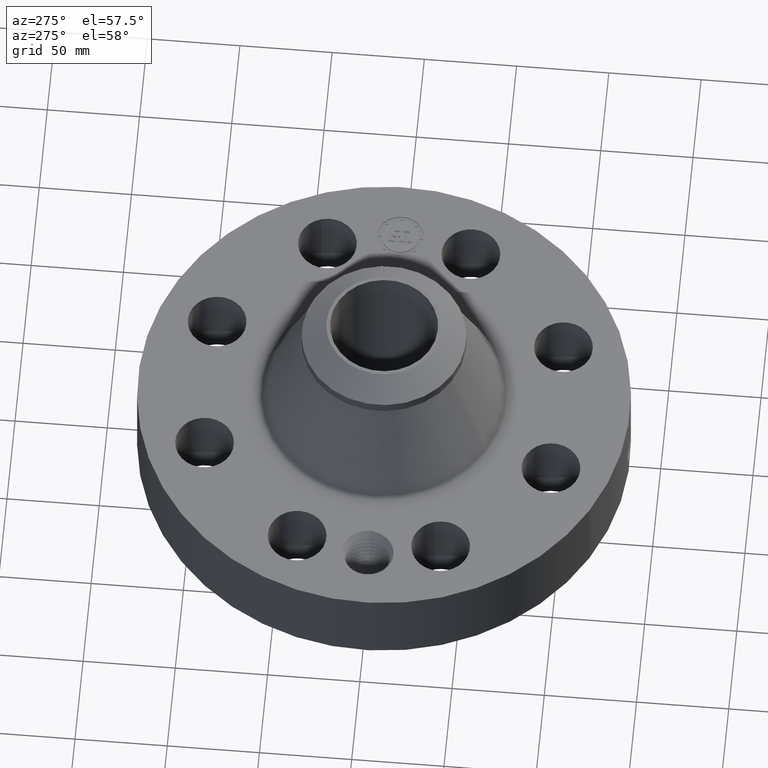
[diagram: clean part render]
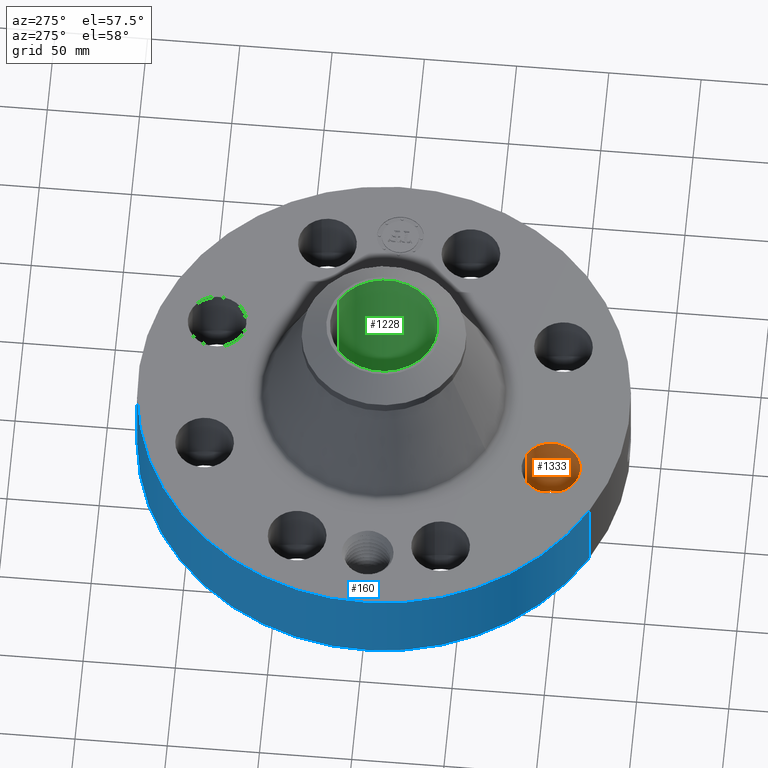
[diagram: same view with three faces highlighted in distinct colors, each labeled with its STEP entity id]
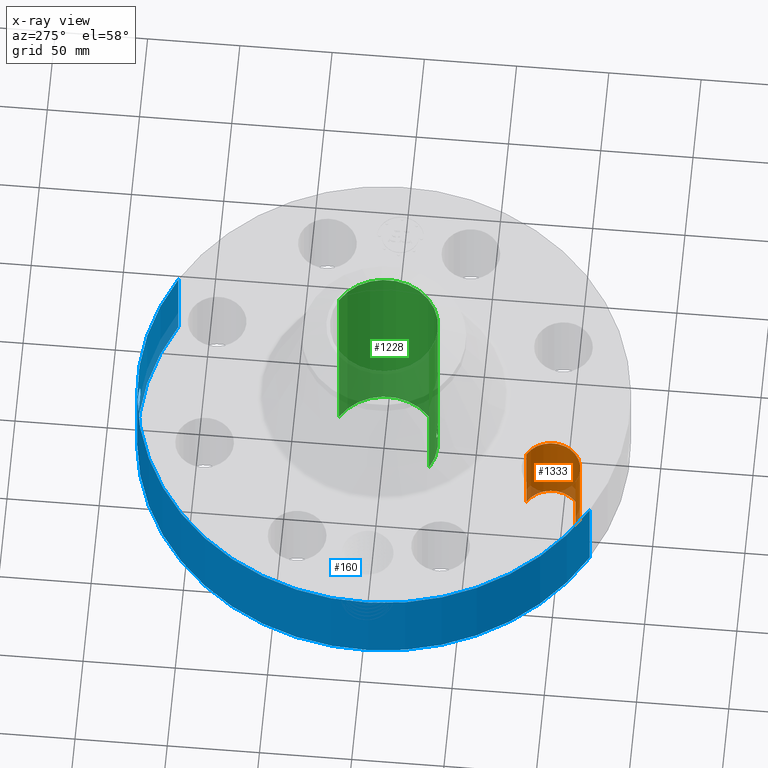
[diagram: x-ray of the same camera — body ghosted, the three highlighted faces saturated]
A machine part, auxiliary view with three faces highlighted in distinct colors.
The next image is the same camera in x-ray (body ghosted, the three faces saturated) — at least one of them is partly hidden behind the body in this view.
Their STEP definitions:

[orange] entity #1333 — the highlighted cylindrical surface (edge-blend (fillet) strip) has radius 15.875 mm, axis along (0, -0, -1).
#285=AXIS2_PLACEMENT_3D('Circle Axis2P3D',#283,#284,$) ;
#618=AXIS2_PLACEMENT_3D('Circle Axis2P3D',#616,#617,$) ;
#1315=AXIS2_PLACEMENT_3D('Cylinder Axis2P3D',#1312,#1313,#1314) ;
#283=CARTESIAN_POINT('Axis2P3D Location',(-1.53073372947,-3.69551813006,0.250000000001)) ;
#287=CARTESIAN_POINT('Vertex',(-1.23109276784,-3.14702902888,0.250000000001)) ;
#289=CARTESIAN_POINT('Vertex',(-1.8303746911,-4.24400723124,0.250000000001)) ;
#611=CARTESIAN_POINT('Vertex',(-1.8303746911,-4.24400723124,2.13000000001)) ;
#613=CARTESIAN_POINT('Vertex',(-1.23109276784,-3.14702902888,2.13000000001)) ;
#616=CARTESIAN_POINT('Axis2P3D Location',(-1.53073372947,-3.69551813006,2.13000000001)) ;
#1312=CARTESIAN_POINT('Axis2P3D Location',(-1.53073372947,-3.69551813006,2.12606299213)) ;
#1317=CARTESIAN_POINT('Line Origine',(-1.23109276784,-3.14702902888,1.19)) ;
#1322=CARTESIAN_POINT('Line Origine',(-1.8303746911,-4.24400723124,1.19)) ;
#284=DIRECTION('Axis2P3D Direction',(0.,0.,-0.0393700787402)) ;
#617=DIRECTION('Axis2P3D Direction',(0.,0.,-0.0393700787402)) ;
#1313=DIRECTION('Axis2P3D Direction',(0.,-0.,-0.0393700787402)) ;
#1314=DIRECTION('Axis2P3D XDirection',(-0.0188750212049,-0.0345504945626,0.)) ;
#1318=DIRECTION('Vector Direction',(0.,0.,-0.0393700787402)) ;
#1323=DIRECTION('Vector Direction',(0.,0.,-0.0393700787402)) ;
#1319=VECTOR('Line Direction',#1318,0.0393700787402) ;
#1324=VECTOR('Line Direction',#1323,0.0393700787402) ;
#1328=ORIENTED_EDGE('',*,*,#1321,.F.) ;
#1329=ORIENTED_EDGE('',*,*,#291,.T.) ;
#1330=ORIENTED_EDGE('',*,*,#1326,.T.) ;
#1331=ORIENTED_EDGE('',*,*,#620,.F.) ;
#1333=ADVANCED_FACE('PartBody',(#1332),#1316,.F.) ;
#286=CIRCLE('generated circle',#285,0.625000000002) ;
#619=CIRCLE('generated circle',#618,0.625000000002) ;
#1316=CYLINDRICAL_SURFACE('generated cylinder',#1315,0.625000000002) ;
#291=EDGE_CURVE('',#288,#290,#286,.T.) ;
#620=EDGE_CURVE('',#614,#612,#619,.T.) ;
#1321=EDGE_CURVE('',#288,#614,#1320,.F.) ;
#1326=EDGE_CURVE('',#290,#612,#1325,.F.) ;
#1327=EDGE_LOOP('',(#1328,#1329,#1330,#1331)) ;
#1332=FACE_OUTER_BOUND('',#1327,.T.) ;
#1320=LINE('Line',#1317,#1319) ;
#1325=LINE('Line',#1322,#1324) ;
#288=VERTEX_POINT('',#287) ;
#290=VERTEX_POINT('',#289) ;
#612=VERTEX_POINT('',#611) ;
#614=VERTEX_POINT('',#613) ;

[blue] entity #160 — the highlighted cylindrical surface (partial cylindrical patch) has radius 133.35 mm, axis along (0, 0, -1).
#38=AXIS2_PLACEMENT_3D('Cylinder Axis2P3D',#35,#36,#37) ;
#42=AXIS2_PLACEMENT_3D('Circle Axis2P3D',#40,#41,$) ;
#58=AXIS2_PLACEMENT_3D('Circle Axis2P3D',#56,#57,$) ;
#35=CARTESIAN_POINT('Axis2P3D Location',(0.,0.,2.56000000001)) ;
#40=CARTESIAN_POINT('Axis2P3D Location',(0.,0.,0.250000000001)) ;
#44=CARTESIAN_POINT('Vertex',(-2.51698407768,-4.60730844994,0.250000000001)) ;
#46=CARTESIAN_POINT('Vertex',(2.51698407768,4.60730844994,0.250000000001)) ;
#49=CARTESIAN_POINT('Line Origine',(-2.51698407768,-4.60730844994,1.19)) ;
#53=CARTESIAN_POINT('Vertex',(-2.51698407768,-4.60730844994,2.13000000001)) ;
#56=CARTESIAN_POINT('Axis2P3D Location',(0.,0.,2.13000000001)) ;
#60=CARTESIAN_POINT('Vertex',(2.51698407768,4.60730844994,2.13000000001)) ;
#63=CARTESIAN_POINT('Line Origine',(2.51698407768,4.60730844994,1.19)) ;
#75=CARTESIAN_POINT('Control Point',(-0.0642548901316,5.24960677664,1.28822813093)) ;
#76=CARTESIAN_POINT('Control Point',(-0.0433119164893,5.24986311745,1.29210073242)) ;
#77=CARTESIAN_POINT('Control Point',(-0.0220165854777,5.24999704255,1.29407525178)) ;
#78=CARTESIAN_POINT('Control Point',(-0.000716899920757,5.24999995107,1.29411849726)) ;
#79=CARTESIAN_POINT('Vertex',(-0.0642326860734,5.24960731882,1.28823254207)) ;
#81=CARTESIAN_POINT('Vertex',(-0.000716697537561,5.2499999511,1.29411850753)) ;
#85=CARTESIAN_POINT('Control Point',(-0.0642325648551,5.24960704985,1.28823191245)) ;
#86=CARTESIAN_POINT('Control Point',(-0.101366658571,5.24915268859,1.28265408666)) ;
#87=CARTESIAN_POINT('Control Point',(-0.137571209263,5.24830196282,1.27041645814)) ;
#88=CARTESIAN_POINT('Control Point',(-0.17070982714,5.2472238522,1.25251500554)) ;
#89=CARTESIAN_POINT('Vertex',(-0.17070982714,5.2472238522,1.25251500554)) ;
#93=CARTESIAN_POINT('Control Point',(-0.029224179225,5.24991866104,0.531058913899)) ;
#94=CARTESIAN_POINT('Control Point',(-0.0757986145892,5.24965939995,0.537030414223)) ;
#95=CARTESIAN_POINT('Control Point',(-0.121210150479,5.24889011729,0.550520744814)) ;
#96=CARTESIAN_POINT('Control Point',(-0.16372180223,5.24767092096,0.571165603557)) ;
#97=CARTESIAN_POINT('Control Point',(-0.257613173302,5.24410928851,0.6363261019)) ;
#98=CARTESIAN_POINT('Control Point',(-0.321981420687,5.24027286201,0.729904568438)) ;
#99=CARTESIAN_POINT('Control Point',(-0.347591831214,5.23849692535,0.791510173862)) ;
#100=CARTESIAN_POINT('Control Point',(-0.367018694994,5.23715940402,0.888798392358)) ;
#101=CARTESIAN_POINT('Control Point',(-0.357452253228,5.23781804436,0.985206805158)) ;
#102=CARTESIAN_POINT('Control Point',(-0.350906070961,5.23826917247,1.01733145365)) ;
#103=CARTESIAN_POINT('Control Point',(-0.326667842426,5.23988640252,1.09444810264)) ;
#104=CARTESIAN_POINT('Control Point',(-0.283222018889,5.24246131211,1.1630522169)) ;
#105=CARTESIAN_POINT('Control Point',(-0.250890376052,5.24419241091,1.19949220042)) ;
#106=CARTESIAN_POINT('Control Point',(-0.212821081837,5.24585383156,1.22976654196)) ;
#107=CARTESIAN_POINT('Control Point',(-0.17070982714,5.2472238522,1.25251500554)) ;
#108=CARTESIAN_POINT('Vertex',(-0.029224179225,5.24991866104,0.531058913899)) ;
#112=CARTESIAN_POINT('Control Point',(-0.029224179225,5.24991866104,0.531058913899)) ;
#113=CARTESIAN_POINT('Control Point',(-0.0194758727198,5.24997292593,0.53085645789)) ;
#114=CARTESIAN_POINT('Control Point',(-0.00972559835264,5.25000000508,0.530961817463)) ;
#115=CARTESIAN_POINT('Control Point',(2.72878353289E-006,5.25000000002,0.531374667805)) ;
#116=CARTESIAN_POINT('Vertex',(2.72878353757E-006,5.25000000002,0.531374667805)) ;
#120=CARTESIAN_POINT('Control Point',(0.194329401017,5.24640220381,0.584290639301)) ;
#121=CARTESIAN_POINT('Control Point',(0.134784125881,5.24860779103,0.552218166306)) ;
#122=CARTESIAN_POINT('Control Point',(0.0678213827939,5.24999996477,0.534252755244)) ;
#123=CARTESIAN_POINT('Control Point',(2.72878354224E-006,5.25000000002,0.531374667805)) ;
#124=CARTESIAN_POINT('Vertex',(0.194329401017,5.24640220381,0.584290639301)) ;
#128=CARTESIAN_POINT('Control Point',(0.194329401017,5.24640220381,0.584290639301)) ;
#129=CARTESIAN_POINT('Control Point',(0.245491765184,5.24450712387,0.6118478813)) ;
#130=CARTESIAN_POINT('Control Point',(0.292059527039,5.24215771215,0.647986187494)) ;
#131=CARTESIAN_POINT('Control Point',(0.332013433494,5.23964260674,0.692108479063)) ;
#132=CARTESIAN_POINT('Control Point',(0.391712510196,5.23546450048,0.79066654686)) ;
#133=CARTESIAN_POINT('Control Point',(0.411028571063,5.23387653244,0.903977179941)) ;
#134=CARTESIAN_POINT('Control Point',(0.409563636762,5.23399901225,0.960037257835)) ;
#135=CARTESIAN_POINT('Control Point',(0.384642365225,5.23601093393,1.07097346918)) ;
#136=CARTESIAN_POINT('Control Point',(0.321410488667,5.24032086589,1.16370403181)) ;
#137=CARTESIAN_POINT('Control Point',(0.280632350201,5.24278573324,1.2039611212)) ;
#138=CARTESIAN_POINT('Control Point',(0.201889890905,5.24656145134,1.25790111906)) ;
#139=CARTESIAN_POINT('Control Point',(0.112894673334,5.24898233293,1.28620972517)) ;
#140=CARTESIAN_POINT('Control Point',(0.0753579945773,5.24966520065,1.29335685785)) ;
#141=CARTESIAN_POINT('Control Point',(0.037493690239,5.25000018475,1.29599233588)) ;
#142=CARTESIAN_POINT('Control Point',(-2.58579355177E-005,5.24999999996,1.29415298436)) ;
#143=CARTESIAN_POINT('Vertex',(-2.58579355209E-005,5.24999999996,1.29415298436)) ;
#147=CARTESIAN_POINT('Control Point',(-0.0007166975262,5.2499999511,1.29411850751)) ;
#148=CARTESIAN_POINT('Control Point',(-0.000371301062621,5.24999999825,1.29413604943)) ;
#149=CARTESIAN_POINT('Control Point',(-2.58579427892E-005,5.24999999996,1.29415298436)) ;
#36=DIRECTION('Axis2P3D Direction',(0.,0.,-0.0393700787402)) ;
#37=DIRECTION('Axis2P3D XDirection',(0.0188750212049,0.0345504945626,0.)) ;
#41=DIRECTION('Axis2P3D Direction',(0.,0.,-0.0393700787402)) ;
#50=DIRECTION('Vector Direction',(0.,0.,-0.0393700787402)) ;
#57=DIRECTION('Axis2P3D Direction',(0.,0.,-0.0393700787402)) ;
#64=DIRECTION('Vector Direction',(0.,0.,-0.0393700787402)) ;
#51=VECTOR('Line Direction',#50,0.0393700787402) ;
#65=VECTOR('Line Direction',#64,0.0393700787402) ;
#69=ORIENTED_EDGE('',*,*,#48,.F.) ;
#70=ORIENTED_EDGE('',*,*,#55,.T.) ;
#71=ORIENTED_EDGE('',*,*,#62,.T.) ;
#72=ORIENTED_EDGE('',*,*,#67,.F.) ;
#152=ORIENTED_EDGE('',*,*,#83,.F.) ;
#153=ORIENTED_EDGE('',*,*,#91,.T.) ;
#154=ORIENTED_EDGE('',*,*,#110,.F.) ;
#155=ORIENTED_EDGE('',*,*,#118,.T.) ;
#156=ORIENTED_EDGE('',*,*,#126,.F.) ;
#157=ORIENTED_EDGE('',*,*,#145,.T.) ;
#158=ORIENTED_EDGE('',*,*,#150,.F.) ;
#159=FACE_BOUND('',#151,.T.) ;
#160=ADVANCED_FACE('PartBody',(#73,#159),#39,.T.) ;
#74=B_SPLINE_CURVE_WITH_KNOTS('',3,(#75,#76,#77,#78),.UNSPECIFIED.,.F.,.U.,(4,4),(4.15886578207,6.52187526566),.UNSPECIFIED.) ;
#84=B_SPLINE_CURVE_WITH_KNOTS('',3,(#85,#86,#87,#88),.UNSPECIFIED.,.F.,.U.,(4,4),(0.,4.219171096),.UNSPECIFIED.) ;
#92=B_SPLINE_CURVE_WITH_KNOTS('',5,(#93,#94,#95,#96,#97,#98,#99,#100,#101,#102,#103,#104,#105,#106,#107),.UNSPECIFIED.,.F.,.U.,(6,3,3,3,6),(0.,8.16106326895,20.0085234295,26.0732239749,35.0091523401),.UNSPECIFIED.) ;
#111=B_SPLINE_CURVE_WITH_KNOTS('',3,(#112,#113,#114,#115),.UNSPECIFIED.,.F.,.U.,(4,4),(0.,1.01672393967),.UNSPECIFIED.) ;
#119=B_SPLINE_CURVE_WITH_KNOTS('',3,(#120,#121,#122,#123),.UNSPECIFIED.,.F.,.U.,(4,4),(0.,7.08784236665),.UNSPECIFIED.) ;
#127=B_SPLINE_CURVE_WITH_KNOTS('',5,(#128,#129,#130,#131,#132,#133,#134,#135,#136,#137,#138,#139,#140,#141,#142),.UNSPECIFIED.,.F.,.U.,(6,3,3,3,6),(0.,10.1500013261,19.6791311546,29.7545946757,36.767775131),.UNSPECIFIED.) ;
#146=B_SPLINE_CURVE_WITH_KNOTS('',2,(#147,#148,#149),.UNSPECIFIED.,.F.,.U.,(3,3),(1.08990104316,1.11572923357),.UNSPECIFIED.) ;
#43=CIRCLE('generated circle',#42,5.25000000002) ;
#59=CIRCLE('generated circle',#58,5.25000000002) ;
#39=CYLINDRICAL_SURFACE('generated cylinder',#38,5.25000000002) ;
#48=EDGE_CURVE('',#45,#47,#43,.T.) ;
#55=EDGE_CURVE('',#45,#54,#52,.F.) ;
#62=EDGE_CURVE('',#54,#61,#59,.T.) ;
#67=EDGE_CURVE('',#47,#61,#66,.F.) ;
#83=EDGE_CURVE('',#80,#82,#74,.T.) ;
#91=EDGE_CURVE('',#80,#90,#84,.T.) ;
#110=EDGE_CURVE('',#109,#90,#92,.T.) ;
#118=EDGE_CURVE('',#109,#117,#111,.T.) ;
#126=EDGE_CURVE('',#125,#117,#119,.T.) ;
#145=EDGE_CURVE('',#125,#144,#127,.T.) ;
#150=EDGE_CURVE('',#82,#144,#146,.T.) ;
#68=EDGE_LOOP('',(#69,#70,#71,#72)) ;
#151=EDGE_LOOP('',(#152,#153,#154,#155,#156,#157,#158)) ;
#73=FACE_OUTER_BOUND('',#68,.T.) ;
#52=LINE('Line',#49,#51) ;
#66=LINE('Line',#63,#65) ;
#45=VERTEX_POINT('',#44) ;
#47=VERTEX_POINT('',#46) ;
#54=VERTEX_POINT('',#53) ;
#61=VERTEX_POINT('',#60) ;
#80=VERTEX_POINT('',#79) ;
#82=VERTEX_POINT('',#81) ;
#90=VERTEX_POINT('',#89) ;
#109=VERTEX_POINT('',#108) ;
#117=VERTEX_POINT('',#116) ;
#125=VERTEX_POINT('',#124) ;
#144=VERTEX_POINT('',#143) ;

[green] entity #1228 — the highlighted cylindrical surface (partial cylindrical patch) has radius 29.21 mm, axis along (0, 0, -1).
#249=AXIS2_PLACEMENT_3D('Circle Axis2P3D',#247,#248,$) ;
#1159=AXIS2_PLACEMENT_3D('Cylinder Axis2P3D',#1156,#1157,#1158) ;
#1163=AXIS2_PLACEMENT_3D('Circle Axis2P3D',#1161,#1162,$) ;
#247=CARTESIAN_POINT('Axis2P3D Location',(0.,0.,0.250000000001)) ;
#251=CARTESIAN_POINT('Vertex',(0.551339369397,1.00921994618,0.250000000001)) ;
#253=CARTESIAN_POINT('Vertex',(-0.551339369397,-1.00921994618,0.250000000001)) ;
#1156=CARTESIAN_POINT('Axis2P3D Location',(0.,0.,2.56000000001)) ;
#1161=CARTESIAN_POINT('Axis2P3D Location',(0.,0.,4.87000000002)) ;
#1165=CARTESIAN_POINT('Vertex',(0.551339369397,1.00921994618,4.87000000002)) ;
#1167=CARTESIAN_POINT('Vertex',(-0.551339369397,-1.00921994618,4.87000000002)) ;
#1170=CARTESIAN_POINT('Line Origine',(0.551339369397,1.00921994618,2.56000000001)) ;
#1175=CARTESIAN_POINT('Line Origine',(-0.551339369397,-1.00921994618,2.56000000001)) ;
#1187=CARTESIAN_POINT('Control Point',(0.164546730355,-1.13816711143,0.850107711515)) ;
#1188=CARTESIAN_POINT('Control Point',(0.153731456487,-1.13973069373,0.830310485493)) ;
#1189=CARTESIAN_POINT('Control Point',(0.139948746179,-1.14159213501,0.81215793106)) ;
#1190=CARTESIAN_POINT('Control Point',(0.123523720021,-1.14356105809,0.796224476759)) ;
#1191=CARTESIAN_POINT('Control Point',(0.0772319416331,-1.14809159051,0.76324915392)) ;
#1192=CARTESIAN_POINT('Control Point',(0.0212741450445,-1.15057887466,0.749028273981)) ;
#1193=CARTESIAN_POINT('Control Point',(-0.0137347069294,-1.15070493463,0.748335369814)) ;
#1194=CARTESIAN_POINT('Control Point',(-0.070247011684,-1.14856850265,0.7603522078)) ;
#1195=CARTESIAN_POINT('Control Point',(-0.117822070896,-1.14417622941,0.791510251335)) ;
#1196=CARTESIAN_POINT('Control Point',(-0.134871090775,-1.14221708934,0.806807466342)) ;
#1197=CARTESIAN_POINT('Control Point',(-0.174318947876,-1.13705048297,0.854775081673)) ;
#1198=CARTESIAN_POINT('Control Point',(-0.192220809729,-1.13381572754,0.915784323698)) ;
#1199=CARTESIAN_POINT('Control Point',(-0.1930215546,-1.13366052048,0.956729117088)) ;
#1200=CARTESIAN_POINT('Control Point',(-0.183195658152,-1.13547100463,0.995755655137)) ;
#1201=CARTESIAN_POINT('Control Point',(-0.164546730355,-1.13816711143,1.02989228849)) ;
#1202=CARTESIAN_POINT('Vertex',(0.164546730355,-1.13816711143,0.850107711515)) ;
#1204=CARTESIAN_POINT('Vertex',(-0.164546730355,-1.13816711143,1.02989228849)) ;
#1208=CARTESIAN_POINT('Control Point',(0.164546730355,-1.13816711143,0.850107711515)) ;
#1209=CARTESIAN_POINT('Control Point',(0.180603795599,-1.13584571455,0.879499972291)) ;
#1210=CARTESIAN_POINT('Control Point',(0.190119886715,-1.13418087601,0.912517374907)) ;
#1211=CARTESIAN_POINT('Control Point',(0.191966664823,-1.13383851551,0.947267854883)) ;
#1212=CARTESIAN_POINT('Control Point',(0.181952781185,-1.13567532067,1.00388950485)) ;
#1213=CARTESIAN_POINT('Control Point',(0.15266791743,-1.13992420936,1.05233394453)) ;
#1214=CARTESIAN_POINT('Control Point',(0.138052291837,-1.14186019717,1.06987231722)) ;
#1215=CARTESIAN_POINT('Control Point',(0.0955565369695,-1.14662877743,1.1075458563)) ;
#1216=CARTESIAN_POINT('Control Point',(0.0414960015161,-1.14998627629,1.1276195459)) ;
#1217=CARTESIAN_POINT('Control Point',(0.00673584353904,-1.15078720412,1.1320543336)) ;
#1218=CARTESIAN_POINT('Control Point',(-0.0563569065684,-1.14955139717,1.12552243979)) ;
#1219=CARTESIAN_POINT('Control Point',(-0.111183792304,-1.1450007406,1.09491016745)) ;
#1220=CARTESIAN_POINT('Control Point',(-0.133123116797,-1.14250798461,1.07650833672)) ;
#1221=CARTESIAN_POINT('Control Point',(-0.151121241433,-1.14010805691,1.05446748112)) ;
#1222=CARTESIAN_POINT('Control Point',(-0.164546730355,-1.13816711143,1.02989228849)) ;
#248=DIRECTION('Axis2P3D Direction',(0.,0.,-0.0393700787402)) ;
#1157=DIRECTION('Axis2P3D Direction',(0.,0.,-0.0393700787402)) ;
#1158=DIRECTION('Axis2P3D XDirection',(-0.0188750212049,-0.0345504945626,0.)) ;
#1162=DIRECTION('Axis2P3D Direction',(0.,0.,-0.0393700787402)) ;
#1171=DIRECTION('Vector Direction',(0.,0.,-0.0393700787402)) ;
#1176=DIRECTION('Vector Direction',(0.,0.,-0.0393700787402)) ;
#1172=VECTOR('Line Direction',#1171,0.0393700787402) ;
#1177=VECTOR('Line Direction',#1176,0.0393700787402) ;
#1181=ORIENTED_EDGE('',*,*,#1169,.F.) ;
#1182=ORIENTED_EDGE('',*,*,#1174,.T.) ;
#1183=ORIENTED_EDGE('',*,*,#255,.T.) ;
#1184=ORIENTED_EDGE('',*,*,#1179,.F.) ;
#1225=ORIENTED_EDGE('',*,*,#1206,.F.) ;
#1226=ORIENTED_EDGE('',*,*,#1223,.T.) ;
#1227=FACE_BOUND('',#1224,.T.) ;
#1228=ADVANCED_FACE('PartBody',(#1185,#1227),#1160,.F.) ;
#1186=B_SPLINE_CURVE_WITH_KNOTS('',5,(#1187,#1188,#1189,#1190,#1191,#1192,#1193,#1194,#1195,#1196,#1197,#1198,#1199,#1200,#1201),.UNSPECIFIED.,.F.,.U.,(6,3,3,3,6),(0.,4.06140002052,10.1258632567,14.1909067081,21.1940354928),.UNSPECIFIED.) ;
#1207=B_SPLINE_CURVE_WITH_KNOTS('',5,(#1208,#1209,#1210,#1211,#1212,#1213,#1214,#1215,#1216,#1217,#1218,#1219,#1220,#1221,#1222),.UNSPECIFIED.,.F.,.U.,(6,3,3,3,6),(0.,6.02982096522,10.0815961315,16.1525156599,21.1941153132),.UNSPECIFIED.) ;
#250=CIRCLE('generated circle',#249,1.15) ;
#1164=CIRCLE('generated circle',#1163,1.15) ;
#1160=CYLINDRICAL_SURFACE('generated cylinder',#1159,1.15) ;
#255=EDGE_CURVE('',#252,#254,#250,.T.) ;
#1169=EDGE_CURVE('',#1166,#1168,#1164,.T.) ;
#1174=EDGE_CURVE('',#1166,#252,#1173,.T.) ;
#1179=EDGE_CURVE('',#1168,#254,#1178,.T.) ;
#1206=EDGE_CURVE('',#1203,#1205,#1186,.T.) ;
#1223=EDGE_CURVE('',#1203,#1205,#1207,.T.) ;
#1180=EDGE_LOOP('',(#1181,#1182,#1183,#1184)) ;
#1224=EDGE_LOOP('',(#1225,#1226)) ;
#1185=FACE_OUTER_BOUND('',#1180,.T.) ;
#1173=LINE('Line',#1170,#1172) ;
#1178=LINE('Line',#1175,#1177) ;
#252=VERTEX_POINT('',#251) ;
#254=VERTEX_POINT('',#253) ;
#1166=VERTEX_POINT('',#1165) ;
#1168=VERTEX_POINT('',#1167) ;
#1203=VERTEX_POINT('',#1202) ;
#1205=VERTEX_POINT('',#1204) ;